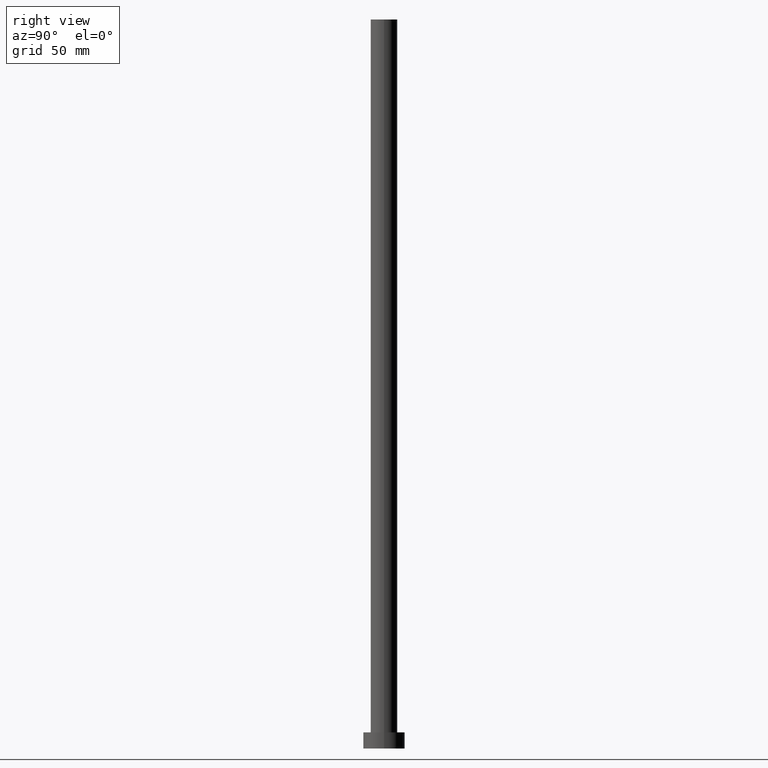
[diagram: clean part render]
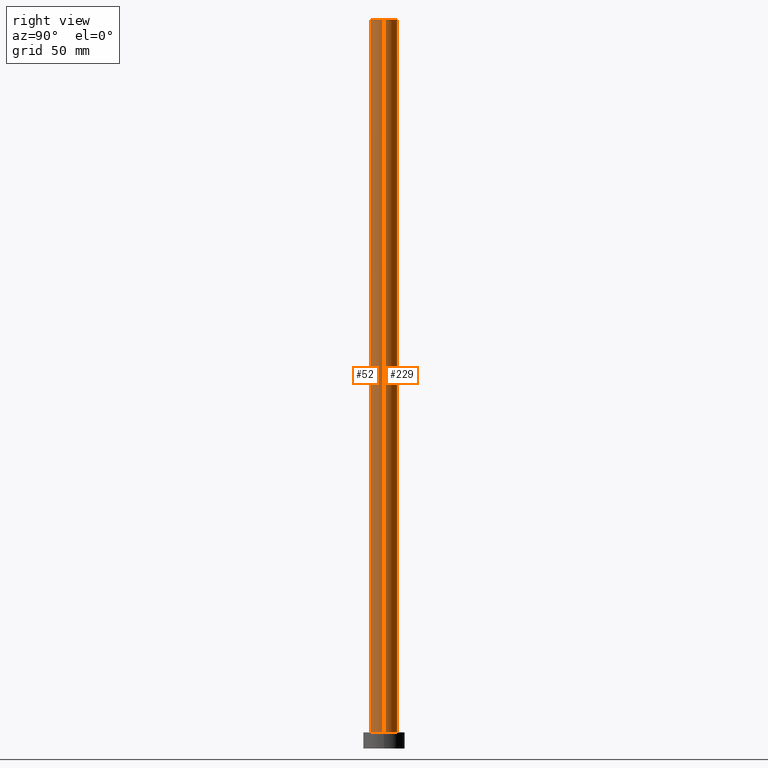
[diagram: same view with one multi-face feature highlighted, each face labeled with its STEP entity id]
A machine part, right view. The highlighted faces form ONE feature: a constant-radius fillet chain: 2 tangent blend faces with common blend radius 5.75 mm. The faces share edges in the B-rep.
Their STEP definitions:
[1] entity #52 (Cylinder):
#6 = DIRECTION ( 'NONE',  ( -1.000000000000000000, 0.000000000000000000, 0.000000000000000000 ) ) ;
#8 = EDGE_CURVE ( 'NONE', #144, #79, #222, .T. ) ;
#11 = EDGE_CURVE ( 'NONE', #85, #98, #223, .T. ) ;
#15 = CYLINDRICAL_SURFACE ( 'NONE', #198, 5.750000000000000000 ) ;
#19 = ORIENTED_EDGE ( 'NONE', *, *, #8, .F. ) ;
#27 = DIRECTION ( 'NONE',  ( 0.000000000000000000, 0.000000000000000000, 1.000000000000000000 ) ) ;
#33 = VECTOR ( 'NONE', #190, 1000.000000000000000 ) ;
#40 = AXIS2_PLACEMENT_3D ( 'NONE', #46, #27, #128 ) ;
#46 = CARTESIAN_POINT ( 'NONE',  ( 0.000000000000000000, 0.000000000000000000, 7.000000000000000000 ) ) ;
#52 = ADVANCED_FACE ( 'NONE', ( #218 ), #15, .T. ) ;
#54 = CARTESIAN_POINT ( 'NONE',  ( -5.750000000000000000, 0.000000000000000000, 315.0000000000000000 ) ) ;
#79 = VERTEX_POINT ( 'NONE', #168 ) ;
#85 = VERTEX_POINT ( 'NONE', #54 ) ;
#95 = EDGE_CURVE ( 'NONE', #98, #79, #153, .T. ) ;
#97 = AXIS2_PLACEMENT_3D ( 'NONE', #106, #175, #109 ) ;
#98 = VERTEX_POINT ( 'NONE', #110 ) ;
#102 = EDGE_LOOP ( 'NONE', ( #19, #189, #200, #170 ) ) ;
#106 = CARTESIAN_POINT ( 'NONE',  ( 0.000000000000000000, 0.000000000000000000, 315.0000000000000000 ) ) ;
#109 = DIRECTION ( 'NONE',  ( 1.000000000000000000, 0.000000000000000000, 0.000000000000000000 ) ) ;
#110 = CARTESIAN_POINT ( 'NONE',  ( -5.750000000000000000, 0.000000000000000000, 7.000000000000000000 ) ) ;
#113 = CARTESIAN_POINT ( 'NONE',  ( 5.750000000000000000, 7.041719095097280880E-16, 315.0000000000000000 ) ) ;
#115 = EDGE_CURVE ( 'NONE', #85, #144, #252, .T. ) ;
#128 = DIRECTION ( 'NONE',  ( 1.000000000000000000, 0.000000000000000000, 0.000000000000000000 ) ) ;
#144 = VERTEX_POINT ( 'NONE', #113 ) ;
#153 = CIRCLE ( 'NONE', #40, 5.750000000000000000 ) ;
#163 = DIRECTION ( 'NONE',  ( -0.000000000000000000, -0.000000000000000000, -1.000000000000000000 ) ) ;
#168 = CARTESIAN_POINT ( 'NONE',  ( 5.750000000000000000, 7.041719095097280880E-16, 7.000000000000000000 ) ) ;
#170 = ORIENTED_EDGE ( 'NONE', *, *, #95, .T. ) ;
#175 = DIRECTION ( 'NONE',  ( 0.000000000000000000, 0.000000000000000000, 1.000000000000000000 ) ) ;
#189 = ORIENTED_EDGE ( 'NONE', *, *, #115, .F. ) ;
#190 = DIRECTION ( 'NONE',  ( -0.000000000000000000, -0.000000000000000000, -1.000000000000000000 ) ) ;
#198 = AXIS2_PLACEMENT_3D ( 'NONE', #220, #206, #6 ) ;
#200 = ORIENTED_EDGE ( 'NONE', *, *, #11, .T. ) ;
#201 = CARTESIAN_POINT ( 'NONE',  ( -5.750000000000000000, 0.000000000000000000, 315.0000000000000000 ) ) ;
#206 = DIRECTION ( 'NONE',  ( -0.000000000000000000, -0.000000000000000000, -1.000000000000000000 ) ) ;
#212 = VECTOR ( 'NONE', #163, 1000.000000000000000 ) ;
#218 = FACE_OUTER_BOUND ( 'NONE', #102, .T. ) ;
#220 = CARTESIAN_POINT ( 'NONE',  ( 0.000000000000000000, 0.000000000000000000, 315.0000000000000000 ) ) ;
#222 = LINE ( 'NONE', #240, #212 ) ;
#223 = LINE ( 'NONE', #201, #33 ) ;
#240 = CARTESIAN_POINT ( 'NONE',  ( 5.750000000000000000, 7.041719095097280880E-16, 315.0000000000000000 ) ) ;
#252 = CIRCLE ( 'NONE', #97, 5.750000000000000000 ) ;
[2] entity #229 (Cylinder):
#3 = FACE_OUTER_BOUND ( 'NONE', #69, .T. ) ;
#8 = EDGE_CURVE ( 'NONE', #144, #79, #222, .T. ) ;
#11 = EDGE_CURVE ( 'NONE', #85, #98, #223, .T. ) ;
#20 = DIRECTION ( 'NONE',  ( -1.000000000000000000, 0.000000000000000000, 0.000000000000000000 ) ) ;
#25 = CIRCLE ( 'NONE', #51, 5.750000000000000000 ) ;
#33 = VECTOR ( 'NONE', #190, 1000.000000000000000 ) ;
#38 = DIRECTION ( 'NONE',  ( 0.000000000000000000, 0.000000000000000000, 1.000000000000000000 ) ) ;
#51 = AXIS2_PLACEMENT_3D ( 'NONE', #207, #38, #236 ) ;
#54 = CARTESIAN_POINT ( 'NONE',  ( -5.750000000000000000, 0.000000000000000000, 315.0000000000000000 ) ) ;
#68 = DIRECTION ( 'NONE',  ( 1.000000000000000000, 0.000000000000000000, 0.000000000000000000 ) ) ;
#69 = EDGE_LOOP ( 'NONE', ( #241, #159, #234, #180 ) ) ;
#75 = AXIS2_PLACEMENT_3D ( 'NONE', #210, #152, #68 ) ;
#79 = VERTEX_POINT ( 'NONE', #168 ) ;
#85 = VERTEX_POINT ( 'NONE', #54 ) ;
#98 = VERTEX_POINT ( 'NONE', #110 ) ;
#103 = EDGE_CURVE ( 'NONE', #79, #98, #193, .T. ) ;
#110 = CARTESIAN_POINT ( 'NONE',  ( -5.750000000000000000, 0.000000000000000000, 7.000000000000000000 ) ) ;
#113 = CARTESIAN_POINT ( 'NONE',  ( 5.750000000000000000, 7.041719095097280880E-16, 315.0000000000000000 ) ) ;
#125 = DIRECTION ( 'NONE',  ( -0.000000000000000000, -0.000000000000000000, -1.000000000000000000 ) ) ;
#144 = VERTEX_POINT ( 'NONE', #113 ) ;
#146 = CARTESIAN_POINT ( 'NONE',  ( 0.000000000000000000, 0.000000000000000000, 315.0000000000000000 ) ) ;
#152 = DIRECTION ( 'NONE',  ( 0.000000000000000000, 0.000000000000000000, 1.000000000000000000 ) ) ;
#159 = ORIENTED_EDGE ( 'NONE', *, *, #8, .T. ) ;
#163 = DIRECTION ( 'NONE',  ( -0.000000000000000000, -0.000000000000000000, -1.000000000000000000 ) ) ;
#168 = CARTESIAN_POINT ( 'NONE',  ( 5.750000000000000000, 7.041719095097280880E-16, 7.000000000000000000 ) ) ;
#172 = AXIS2_PLACEMENT_3D ( 'NONE', #146, #125, #20 ) ;
#180 = ORIENTED_EDGE ( 'NONE', *, *, #11, .F. ) ;
#190 = DIRECTION ( 'NONE',  ( -0.000000000000000000, -0.000000000000000000, -1.000000000000000000 ) ) ;
#193 = CIRCLE ( 'NONE', #75, 5.750000000000000000 ) ;
#201 = CARTESIAN_POINT ( 'NONE',  ( -5.750000000000000000, 0.000000000000000000, 315.0000000000000000 ) ) ;
#203 = EDGE_CURVE ( 'NONE', #144, #85, #25, .T. ) ;
#207 = CARTESIAN_POINT ( 'NONE',  ( 0.000000000000000000, 0.000000000000000000, 315.0000000000000000 ) ) ;
#210 = CARTESIAN_POINT ( 'NONE',  ( 0.000000000000000000, 0.000000000000000000, 7.000000000000000000 ) ) ;
#212 = VECTOR ( 'NONE', #163, 1000.000000000000000 ) ;
#222 = LINE ( 'NONE', #240, #212 ) ;
#223 = LINE ( 'NONE', #201, #33 ) ;
#229 = ADVANCED_FACE ( 'NONE', ( #3 ), #238, .T. ) ;
#234 = ORIENTED_EDGE ( 'NONE', *, *, #103, .T. ) ;
#236 = DIRECTION ( 'NONE',  ( 1.000000000000000000, 0.000000000000000000, 0.000000000000000000 ) ) ;
#238 = CYLINDRICAL_SURFACE ( 'NONE', #172, 5.750000000000000000 ) ;
#240 = CARTESIAN_POINT ( 'NONE',  ( 5.750000000000000000, 7.041719095097280880E-16, 315.0000000000000000 ) ) ;
#241 = ORIENTED_EDGE ( 'NONE', *, *, #203, .F. ) ;